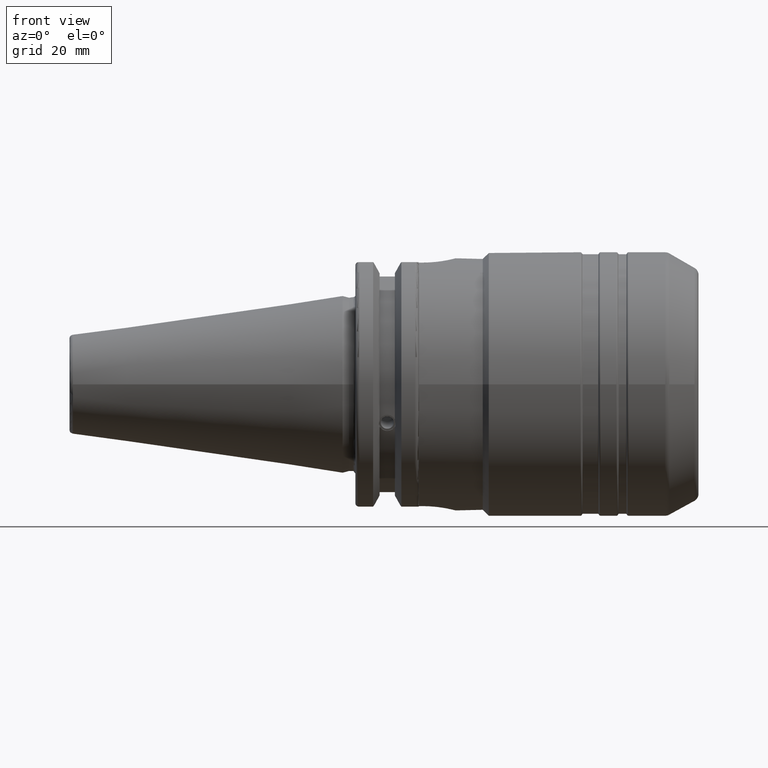
[diagram: clean part render]
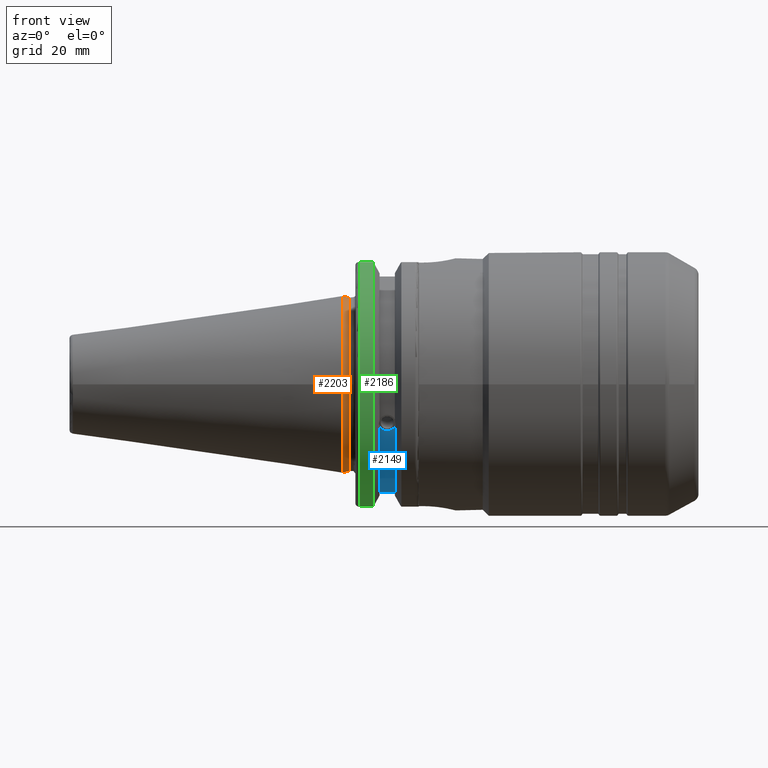
[diagram: same view with three faces highlighted in distinct colors, each labeled with its STEP entity id]
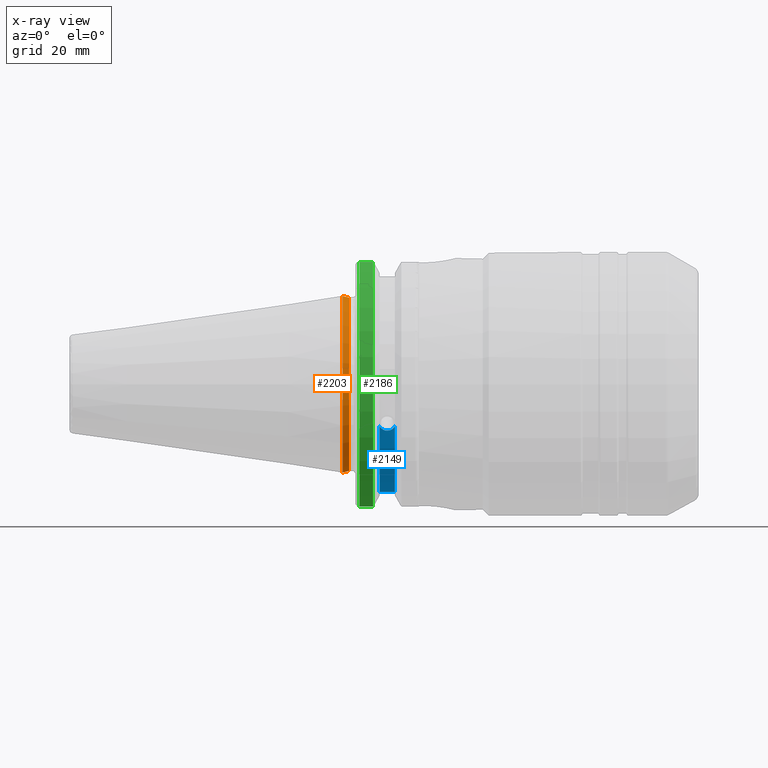
[diagram: x-ray of the same camera — body ghosted, the three highlighted faces saturated]
A machine part, front view with three faces highlighted in distinct colors.
The next image is the same camera in x-ray (body ghosted, the three faces saturated) — at least one of them is partly hidden behind the body in this view.
Their STEP definitions:

[orange] entity #2203 — the highlighted conical surface has half-angle 15 deg.
#291=FACE_OUTER_BOUND('',#413,.T.);
#413=EDGE_LOOP('',(#2069,#2070,#2071,#2072,#2073,#2074));
#519=LINE('',#4280,#623);
#623=VECTOR('',#3231,22.0125);
#772=CIRCLE('',#2463,21.8);
#773=CIRCLE('',#2464,21.8);
#785=CIRCLE('',#2488,22.225);
#786=CIRCLE('',#2489,22.225);
#1002=VERTEX_POINT('',#4039);
#1003=VERTEX_POINT('',#4041);
#1034=VERTEX_POINT('',#4214);
#1035=VERTEX_POINT('',#4215);
#1311=EDGE_CURVE('',#1002,#1003,#772,.T.);
#1312=EDGE_CURVE('',#1003,#1002,#773,.T.);
#1359=EDGE_CURVE('',#1034,#1035,#785,.T.);
#1360=EDGE_CURVE('',#1035,#1034,#786,.T.);
#1387=EDGE_CURVE('',#1002,#1035,#519,.T.);
#2069=ORIENTED_EDGE('',*,*,#1312,.F.);
#2070=ORIENTED_EDGE('',*,*,#1311,.F.);
#2071=ORIENTED_EDGE('',*,*,#1387,.T.);
#2072=ORIENTED_EDGE('',*,*,#1360,.T.);
#2073=ORIENTED_EDGE('',*,*,#1359,.T.);
#2074=ORIENTED_EDGE('',*,*,#1387,.F.);
#2096=CONICAL_SURFACE('',#2524,22.0125,0.261799387799148);
#2203=ADVANCED_FACE('',(#291),#2096,.T.);
#2463=AXIS2_PLACEMENT_3D('',#4042,#3078,#3079);
#2464=AXIS2_PLACEMENT_3D('',#4043,#3080,#3081);
#2488=AXIS2_PLACEMENT_3D('',#4216,#3146,#3147);
#2489=AXIS2_PLACEMENT_3D('',#4217,#3148,#3149);
#2524=AXIS2_PLACEMENT_3D('',#4279,#3229,#3230);
#3078=DIRECTION('center_axis',(1.,0.,0.));
#3079=DIRECTION('ref_axis',(0.,0.,-1.));
#3080=DIRECTION('center_axis',(1.,0.,0.));
#3081=DIRECTION('ref_axis',(0.,0.,-1.));
#3146=DIRECTION('center_axis',(1.,0.,0.));
#3147=DIRECTION('ref_axis',(0.,0.,-1.));
#3148=DIRECTION('center_axis',(1.,0.,0.));
#3149=DIRECTION('ref_axis',(0.,0.,-1.));
#3229=DIRECTION('center_axis',(-1.,0.,0.));
#3230=DIRECTION('ref_axis',(0.,1.,0.));
#3231=DIRECTION('',(-0.965925826289069,-0.258819045102519,-3.16961915143175E-17));
#4039=CARTESIAN_POINT('',(1.58612159321676,-21.8,-2.66973002214123E-15));
#4041=CARTESIAN_POINT('',(1.58612159321676,21.8,0.));
#4042=CARTESIAN_POINT('Origin',(1.58612159321676,0.,0.));
#4043=CARTESIAN_POINT('Origin',(1.58612159321676,0.,0.));
#4214=CARTESIAN_POINT('',(0.,22.225,0.));
#4215=CARTESIAN_POINT('',(0.,-22.225,-2.72177751110499E-15));
#4216=CARTESIAN_POINT('Origin',(0.,0.,0.));
#4217=CARTESIAN_POINT('Origin',(0.,0.,0.));
#4279=CARTESIAN_POINT('Origin',(0.793060796608378,0.,0.));
#4280=CARTESIAN_POINT('',(0.793060796608378,-22.0125,-2.69575376662311E-15));

[blue] entity #2149 — the highlighted cylindrical surface (partial cylindrical patch) has radius 28.15 mm, axis along (1, 0, 0).
#129=B_SPLINE_CURVE_WITH_KNOTS('',3,(#3756,#3757,#3758,#3759,#3760,#3761,
#3762,#3763,#3764,#3765,#3766,#3767,#3768,#3769,#3770),.UNSPECIFIED.,.F.,
 .F.,(4,2,2,3,2,2,4),(-0.231446873660084,-0.158271583089134,-0.079135791544567,
0.,0.0791357915445672,0.158271583089134,0.231446873660466),
 .UNSPECIFIED.);
#168=CYLINDRICAL_SURFACE('',#2405,28.15);
#237=FACE_OUTER_BOUND('',#352,.T.);
#352=EDGE_LOOP('',(#1736,#1737,#1738,#1739));
#465=LINE('',#3835,#569);
#569=VECTOR('',#2941,10.);
#742=CIRCLE('',#2404,28.15);
#743=CIRCLE('',#2406,28.15);
#930=VERTEX_POINT('',#3753);
#931=VERTEX_POINT('',#3755);
#947=VERTEX_POINT('',#3829);
#948=VERTEX_POINT('',#3833);
#1216=EDGE_CURVE('',#931,#930,#129,.T.);
#1237=EDGE_CURVE('',#931,#947,#742,.T.);
#1239=EDGE_CURVE('',#930,#948,#743,.T.);
#1240=EDGE_CURVE('',#948,#947,#465,.T.);
#1736=ORIENTED_EDGE('',*,*,#1216,.T.);
#1737=ORIENTED_EDGE('',*,*,#1239,.T.);
#1738=ORIENTED_EDGE('',*,*,#1240,.T.);
#1739=ORIENTED_EDGE('',*,*,#1237,.F.);
#2149=ADVANCED_FACE('',(#237),#168,.T.);
#2404=AXIS2_PLACEMENT_3D('',#3830,#2934,#2935);
#2405=AXIS2_PLACEMENT_3D('',#3832,#2937,#2938);
#2406=AXIS2_PLACEMENT_3D('',#3834,#2939,#2940);
#2934=DIRECTION('center_axis',(1.,0.,0.));
#2935=DIRECTION('ref_axis',(0.,0.,-1.));
#2937=DIRECTION('center_axis',(1.,0.,0.));
#2938=DIRECTION('ref_axis',(0.,1.,0.));
#2939=DIRECTION('center_axis',(1.,0.,0.));
#2940=DIRECTION('ref_axis',(0.,0.,-1.));
#2941=DIRECTION('',(1.,0.,0.));
#3753=CARTESIAN_POINT('',(9.21909999999999,-26.1451788594704,-10.4332220529567));
#3755=CARTESIAN_POINT('',(13.0491,-26.1451788594704,-10.4332220529567));
#3756=CARTESIAN_POINT('Ctrl Pts',(13.0491,-26.1451788594704,-10.4332220529567));
#3757=CARTESIAN_POINT('Ctrl Pts',(12.9428694290343,-26.0576536126147,-10.6525563316815));
#3758=CARTESIAN_POINT('Ctrl Pts',(12.791379862294,-25.9751489313128,-10.8509873904882));
#3759=CARTESIAN_POINT('Ctrl Pts',(12.4326293734259,-25.8346412777187,-11.1816210830117));
#3760=CARTESIAN_POINT('Ctrl Pts',(12.1965549887012,-25.7695111693635,-11.3298867884858));
#3761=CARTESIAN_POINT('Ctrl Pts',(11.6791874573612,-25.6822868299377,-11.5262389251846));
#3762=CARTESIAN_POINT('Ctrl Pts',(11.3978859718152,-25.6603958057616,-11.5743935949859));
#3763=CARTESIAN_POINT('Ctrl Pts',(11.1341,-25.6603958057616,-11.5743935949859));
#3764=CARTESIAN_POINT('Ctrl Pts',(10.8703140281848,-25.6603958057616,-11.5743935949859));
#3765=CARTESIAN_POINT('Ctrl Pts',(10.5890125426388,-25.6822868299377,-11.5262389251846));
#3766=CARTESIAN_POINT('Ctrl Pts',(10.0716450112988,-25.7695111693635,-11.3298867884858));
#3767=CARTESIAN_POINT('Ctrl Pts',(9.83557062657411,-25.8346412777187,-11.1816210830117));
#3768=CARTESIAN_POINT('Ctrl Pts',(9.4768201377051,-25.9751489313131,-10.8509873904873));
#3769=CARTESIAN_POINT('Ctrl Pts',(9.32533057097183,-26.0576536126096,-10.6525563316942));
#3770=CARTESIAN_POINT('Ctrl Pts',(9.2191,-26.1451788594704,-10.4332220529567));
#3829=CARTESIAN_POINT('',(13.0491,-8.19,-26.932255754021));
#3830=CARTESIAN_POINT('Origin',(13.0491,0.,0.));
#3832=CARTESIAN_POINT('Origin',(11.1341,0.,0.));
#3833=CARTESIAN_POINT('',(9.2191,-8.19,-26.932255754021));
#3834=CARTESIAN_POINT('Origin',(9.2191,0.,0.));
#3835=CARTESIAN_POINT('',(11.1341,-8.19,-26.932255754021));

[green] entity #2186 — the highlighted cylindrical surface (partial cylindrical patch) has radius 31.75 mm, axis along (1, 0, 0).
#181=CYLINDRICAL_SURFACE('',#2496,31.75);
#274=FACE_OUTER_BOUND('',#395,.T.);
#395=EDGE_LOOP('',(#1975,#1976,#1977,#1978));
#501=LINE('',#4139,#605);
#509=LINE('',#4224,#613);
#605=VECTOR('',#3109,10.);
#613=VECTOR('',#3153,10.);
#775=CIRCLE('',#2471,31.75);
#788=CIRCLE('',#2497,31.75);
#1015=VERTEX_POINT('',#4118);
#1016=VERTEX_POINT('',#4127);
#1017=VERTEX_POINT('',#4138);
#1036=VERTEX_POINT('',#4220);
#1334=EDGE_CURVE('',#1015,#1016,#775,.T.);
#1336=EDGE_CURVE('',#1016,#1017,#501,.T.);
#1363=EDGE_CURVE('',#1036,#1015,#509,.T.);
#1369=EDGE_CURVE('',#1017,#1036,#788,.T.);
#1975=ORIENTED_EDGE('',*,*,#1334,.F.);
#1976=ORIENTED_EDGE('',*,*,#1363,.F.);
#1977=ORIENTED_EDGE('',*,*,#1369,.F.);
#1978=ORIENTED_EDGE('',*,*,#1336,.F.);
#2186=ADVANCED_FACE('',(#274),#181,.T.);
#2471=AXIS2_PLACEMENT_3D('',#4128,#3105,#3106);
#2496=AXIS2_PLACEMENT_3D('',#4235,#3168,#3169);
#2497=AXIS2_PLACEMENT_3D('',#4236,#3170,#3171);
#3105=DIRECTION('center_axis',(-1.,0.,0.));
#3106=DIRECTION('ref_axis',(0.,-1.,1.60812264967664E-16));
#3109=DIRECTION('',(1.,0.,0.));
#3153=DIRECTION('',(-1.,0.,0.));
#3168=DIRECTION('center_axis',(1.,0.,0.));
#3169=DIRECTION('ref_axis',(0.,-1.,1.22464679914735E-16));
#3170=DIRECTION('center_axis',(1.,0.,0.));
#3171=DIRECTION('ref_axis',(0.,0.,-1.));
#4118=CARTESIAN_POINT('',(4.175,-8.67204822802685,-30.5427254764662));
#4127=CARTESIAN_POINT('',(4.175,-8.67204822802685,30.5427254764662));
#4128=CARTESIAN_POINT('Origin',(4.175,0.,0.));
#4138=CARTESIAN_POINT('',(7.60793323092436,-8.67204822802685,30.5427254764662));
#4139=CARTESIAN_POINT('',(5.39146661546218,-8.67204822802685,30.5427254764662));
#4220=CARTESIAN_POINT('',(7.60793323092436,-8.67204822802685,-30.5427254764662));
#4224=CARTESIAN_POINT('',(5.39146661546218,-8.67204822802685,-30.5427254764662));
#4235=CARTESIAN_POINT('Origin',(5.39146661546218,0.,0.));
#4236=CARTESIAN_POINT('Origin',(7.60793323092436,0.,0.));